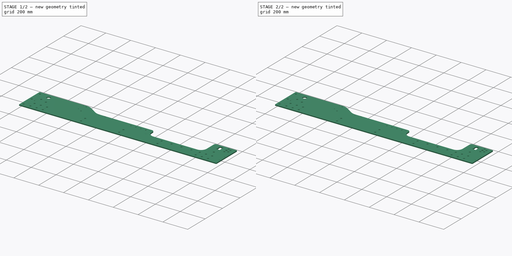
[diagram: build sequence overview — one tinted view per stage of 2, left to right]
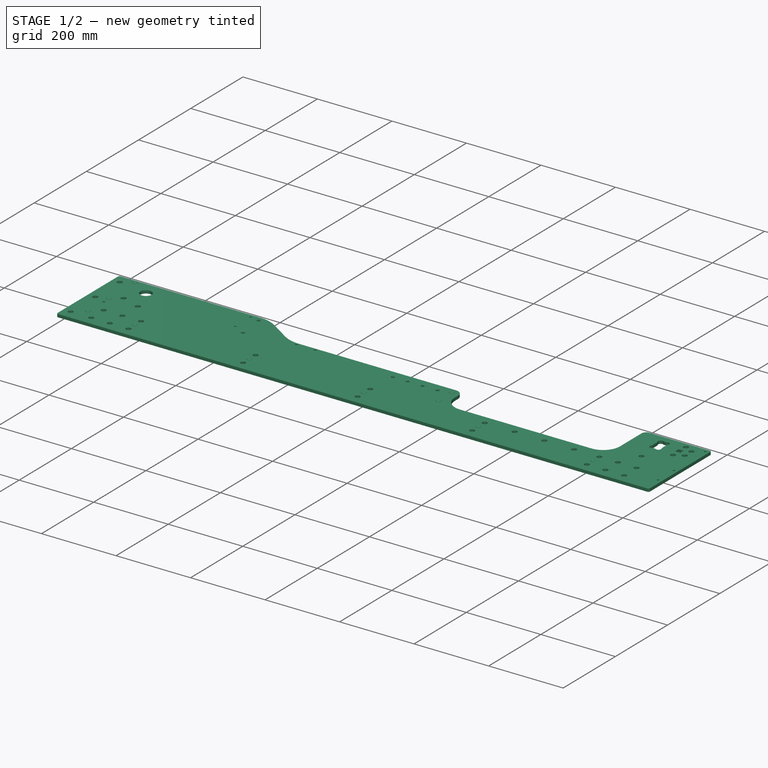
[diagram: stage 1 of 2 — iso view after this stage's code; geometry added in this stage tinted green]
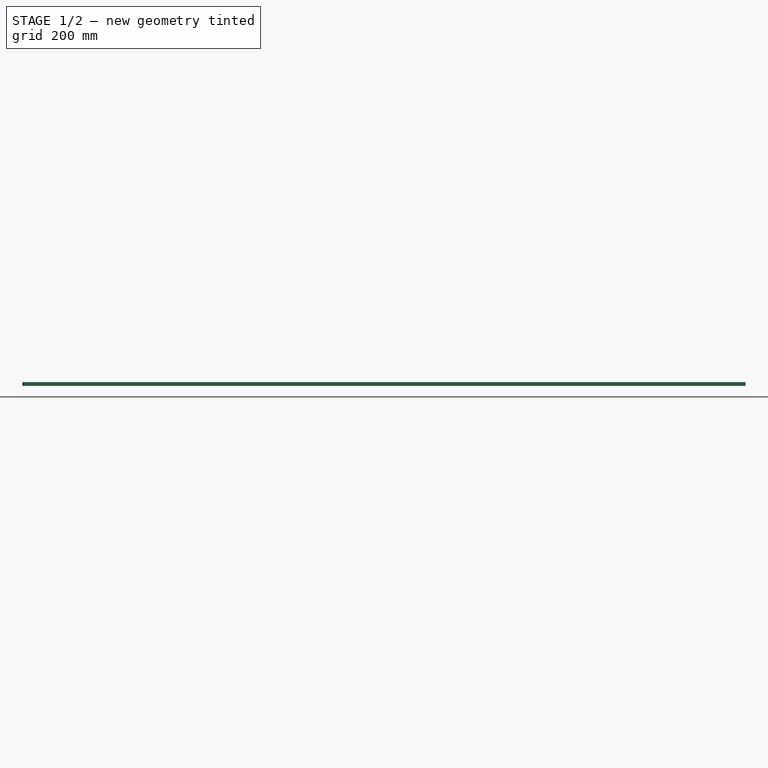
[diagram: stage 1 of 2 — front view after this stage's code; geometry added in this stage tinted green]
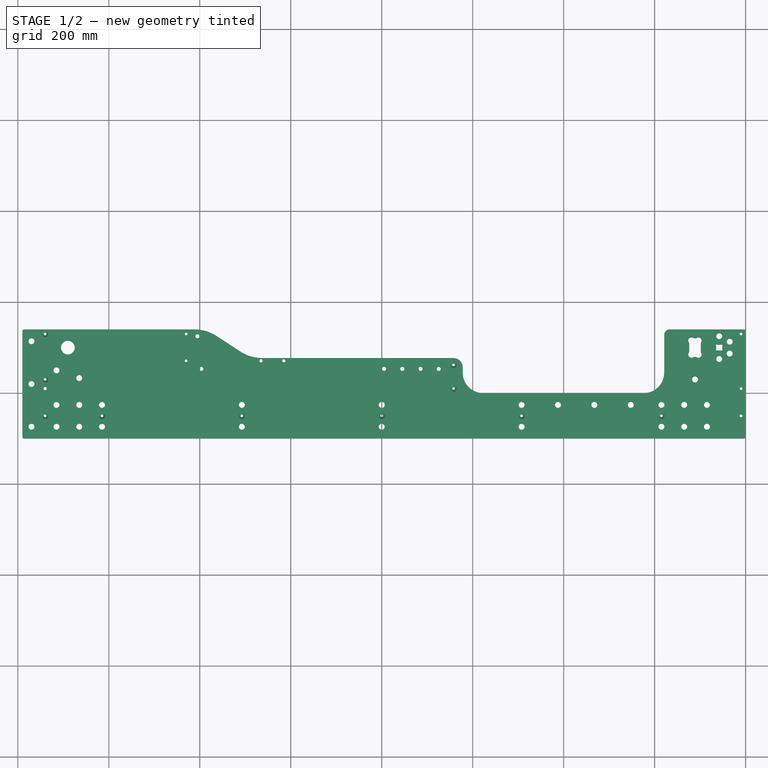
[diagram: stage 1 of 2 — top view after this stage's code; geometry added in this stage tinted green]
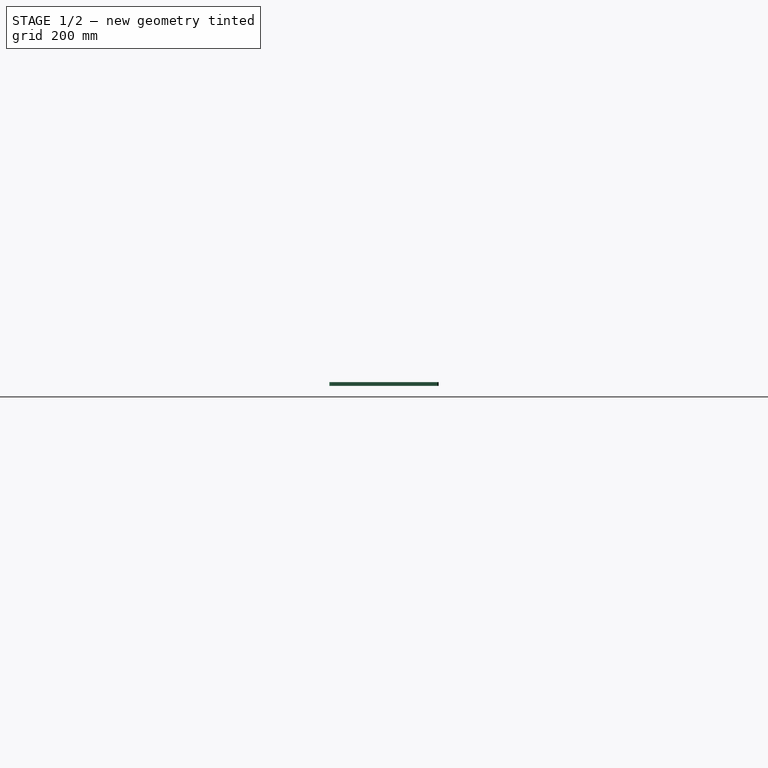
[diagram: stage 1 of 2 — right view after this stage's code; geometry added in this stage tinted green]
FCSTD DOCUMENT  (FreeCAD 0.19R24267 +99 (Git))
Label: V2 Side mounting plate + left plate countersinks
License: All rights reserved
LicenseURL: http://en.wikipedia.org/wiki/All_rights_reserved
objects: PartDesign::Chamfer×2, Sketcher::SketchObject×1, PartDesign::Pad×1, PartDesign::Body×1
note: 8 computed .brp shape members not serialized (recipe doc carries the construction recipe); baked Part::Feature solids carry a one-line shape summary decoded from their .brp

FEATURE [Sketcher::SketchObject] Sketch  label="Profile and holes sketch"
  FullyConstrained = true
  MapMode = 5
  Support = -> [XY_Plane]
  sketch-geometry (196):
    g0: LineSegment StartX=750 StartY=140 StartZ=0 EndX=750 EndY=-100 EndZ=0
    g1: LineSegment StartX=-750 StartY=-100 StartZ=0 EndX=-750 EndY=140 EndZ=0
    g2: ArcOfCircle CenterX=-690 CenterY=100 CenterZ=0 NormalX=0 NormalY=0 NormalZ=1 AngleXU=0 Radius=15 StartAngle=4.71239 EndAngle=7.85398
    g3: LineSegment StartX=223 StartY=0 StartZ=0 EndX=576 EndY=0 EndZ=0
    g4: LineSegment StartX=621 StartY=45 StartZ=0 EndX=621 EndY=128 EndZ=0
    g5: LineSegment StartX=-690 StartY=100 StartZ=0 EndX=60.218 EndY=100 EndZ=0
    g6: LineSegment StartX=60.218 StartY=100 StartZ=0 EndX=60.218 EndY=53.2 EndZ=0
    g7: LineSegment StartX=178 StartY=53.2 StartZ=0 EndX=-750 EndY=53.2 EndZ=0
    g8: LineSegment StartX=-307.5 StartY=-26 StartZ=0 EndX=-307.5 EndY=-74 EndZ=0
    g9: LineSegment StartX=307.5 StartY=-26 StartZ=0 EndX=307.5 EndY=-74 EndZ=0
    g10: LineSegment StartX=715 StartY=-26 StartZ=0 EndX=715 EndY=-74 EndZ=0
    g11: LineSegment StartX=-307.5 StartY=-74 StartZ=0 EndX=5.68e-14 EndY=-74 EndZ=0
    g12: LineSegment StartX=5.68e-14 StartY=-74 StartZ=0 EndX=307.5 EndY=-74 EndZ=0
    g13: GeomPoint X=5.68e-14 Y=-26 Z=0
    g14: Circle CenterX=-715 CenterY=50 CenterZ=0 NormalX=0 NormalY=0 NormalZ=1 AngleXU=0 Radius=6.5
    g15: Circle CenterX=-665 CenterY=33 CenterZ=0 NormalX=0 NormalY=0 NormalZ=1 AngleXU=0 Radius=6.5
    g16: Circle CenterX=-715 CenterY=-26 CenterZ=0 NormalX=0 NormalY=0 NormalZ=1 AngleXU=0 Radius=6.5
    g17: Circle CenterX=-307.5 CenterY=-26 CenterZ=0 NormalX=0 NormalY=0 NormalZ=1 AngleXU=0 Radius=6.5
    g18: Circle CenterX=-307.5 CenterY=-74 CenterZ=0 NormalX=0 NormalY=0 NormalZ=1 AngleXU=0 Radius=6.5
    g19: Circle CenterX=5.68e-14 CenterY=-74 CenterZ=0 NormalX=0 NormalY=0 NormalZ=1 AngleXU=0 Radius=6.5
    g20: Circle CenterX=5.68e-14 CenterY=-26 CenterZ=0 NormalX=0 NormalY=0 NormalZ=1 AngleXU=0 Radius=6.5
    g21: Circle CenterX=307.5 CenterY=-74 CenterZ=0 NormalX=0 NormalY=0 NormalZ=1 AngleXU=0 Radius=6.5
    g22: Circle CenterX=307.5 CenterY=-26 CenterZ=0 NormalX=0 NormalY=0 NormalZ=1 AngleXU=0 Radius=6.5
    g23: Circle CenterX=715 CenterY=-26 CenterZ=0 NormalX=0 NormalY=0 NormalZ=1 AngleXU=0 Radius=6.5
    g24: Circle CenterX=715 CenterY=-74 CenterZ=0 NormalX=0 NormalY=0 NormalZ=1 AngleXU=0 Radius=6.5
    g25: Circle CenterX=307.5 CenterY=-50 CenterZ=0 NormalX=0 NormalY=0 NormalZ=1 AngleXU=0 Radius=3
    g26: Circle CenterX=-307.5 CenterY=-50 CenterZ=0 NormalX=0 NormalY=0 NormalZ=1 AngleXU=0 Radius=3
    g27: LineSegment StartX=-786 StartY=140 StartZ=0 EndX=-412 EndY=140 EndZ=0
    g28: LineSegment StartX=-362.763 StartY=125.338 StartZ=0 EndX=-311.237 EndY=91.6625 EndZ=0
    g29: LineSegment StartX=-262 StartY=77 StartZ=0 EndX=158 EndY=77 EndZ=0
    g30: ArcOfCircle CenterX=-412 CenterY=50 CenterZ=0 NormalX=0 NormalY=0 NormalZ=1 AngleXU=0 Radius=90 StartAngle=0.991931 EndAngle=1.5708
    g31: ArcOfCircle CenterX=-262 CenterY=167 CenterZ=0 NormalX=0 NormalY=0 NormalZ=1 AngleXU=0 Radius=90 StartAngle=4.13352 EndAngle=4.71239
    g32: LineSegment StartX=633 StartY=140 StartZ=0 EndX=796 EndY=140 EndZ=0
    g33: ArcOfCircle CenterX=158 CenterY=57 CenterZ=0 NormalX=0 NormalY=0 NormalZ=1 AngleXU=0 Radius=20 StartAngle=0 EndAngle=1.5708
    g34: LineSegment StartX=-715 StartY=-26 StartZ=0 EndX=-715 EndY=-74 EndZ=0
    g35: Circle CenterX=-715 CenterY=-74 CenterZ=0 NormalX=0 NormalY=0 NormalZ=1 AngleXU=0 Radius=6.5
    g36: LineSegment StartX=688.244 StartY=120.3 StartZ=0 EndX=689.056 EndY=120.3 EndZ=0
    g37: LineSegment StartX=701.3 StartY=108.056 StartZ=0 EndX=701.3 EndY=91.9438 EndZ=0
    g38: LineSegment StartX=689.056 StartY=79.7 StartZ=0 EndX=688.244 EndY=79.7 EndZ=0
    g39: LineSegment StartX=676 StartY=91.9438 StartZ=0 EndX=676 EndY=108.056 EndZ=0
    g40: ArcOfCircle CenterX=680.95 CenterY=115.35 CenterZ=0 NormalX=0 NormalY=0 NormalZ=1 AngleXU=0 Radius=7 StartAngle=1.02277 EndAngle=3.68962
    g41: ArcOfCircle CenterX=680.95 CenterY=84.6497 CenterZ=0 NormalX=0 NormalY=0 NormalZ=1 AngleXU=0 Radius=7 StartAngle=2.59356 EndAngle=5.26042
    g42: ArcOfCircle CenterX=696.35 CenterY=84.6497 CenterZ=0 NormalX=0 NormalY=0 NormalZ=1 AngleXU=0 Radius=7 StartAngle=4.16436 EndAngle=6.83121
    g43: ArcOfCircle CenterX=696.35 CenterY=115.35 CenterZ=0 NormalX=0 NormalY=0 NormalZ=1 AngleXU=0 Radius=7 StartAngle=5.73516 EndAngle=8.40201
    g44: LineSegment StartX=676 StartY=108.056 StartZ=0 EndX=676 EndY=120.3 EndZ=0
    g45: LineSegment StartX=688.244 StartY=120.3 StartZ=0 EndX=676 EndY=120.3 EndZ=0
    g46: LineSegment StartX=689.056 StartY=120.3 StartZ=0 EndX=701.3 EndY=120.3 EndZ=0
    g47: LineSegment StartX=701.3 StartY=108.056 StartZ=0 EndX=701.3 EndY=120.3 EndZ=0
    g48: LineSegment StartX=688.244 StartY=79.7 StartZ=0 EndX=676 EndY=79.7 EndZ=0
    g49: LineSegment StartX=676 StartY=91.9438 StartZ=0 EndX=676 EndY=79.7 EndZ=0
    g50: LineSegment StartX=689.056 StartY=79.7 StartZ=0 EndX=701.3 EndY=79.7 EndZ=0
    g51: LineSegment StartX=701.3 StartY=91.9438 StartZ=0 EndX=701.3 EndY=79.7 EndZ=0
    g52: ArcOfCircle CenterX=669 CenterY=108.056 CenterZ=0 NormalX=0 NormalY=0 NormalZ=1 AngleXU=0 Radius=7 StartAngle=0 EndAngle=0.548028
    g53: ArcOfCircle CenterX=688.244 CenterY=127.3 CenterZ=0 NormalX=0 NormalY=0 NormalZ=1 AngleXU=0 Radius=7 StartAngle=4.16436 EndAngle=4.71239
    g54: ArcOfCircle CenterX=689.056 CenterY=127.3 CenterZ=0 NormalX=0 NormalY=0 NormalZ=1 AngleXU=0 Radius=7 StartAngle=4.71239 EndAngle=5.26042
    g55: ArcOfCircle CenterX=708.3 CenterY=108.056 CenterZ=0 NormalX=0 NormalY=0 NormalZ=1 AngleXU=0 Radius=7 StartAngle=2.59356 EndAngle=3.14159
    g56: ArcOfCircle CenterX=708.3 CenterY=91.9438 CenterZ=0 NormalX=0 NormalY=0 NormalZ=1 AngleXU=0 Radius=7 StartAngle=3.14159 EndAngle=3.68962
    g57: ArcOfCircle CenterX=689.056 CenterY=72.7 CenterZ=0 NormalX=0 NormalY=0 NormalZ=1 AngleXU=0 Radius=7 StartAngle=1.02277 EndAngle=1.5708
    g58: ArcOfCircle CenterX=688.244 CenterY=72.7 CenterZ=0 NormalX=0 NormalY=0 NormalZ=1 AngleXU=0 Radius=7 StartAngle=1.5708 EndAngle=2.11882
    g59: ArcOfCircle CenterX=669 CenterY=91.9438 CenterZ=0 NormalX=0 NormalY=0 NormalZ=1 AngleXU=0 Radius=7 StartAngle=5.73516 EndAngle=6.28319
    g60: LineSegment StartX=60.218 StartY=100 StartZ=0 EndX=800 EndY=100 EndZ=0
    g61: LineSegment StartX=800 StartY=-96 StartZ=0 EndX=800 EndY=136 EndZ=0
    g62: ArcOfCircle CenterX=796 CenterY=-96 CenterZ=0 NormalX=0 NormalY=0 NormalZ=1 AngleXU=0 Radius=4 StartAngle=4.71239 EndAngle=6.28319
    g63: LineSegment StartX=-430 StartY=71 StartZ=0 EndX=-430 EndY=130 EndZ=0
    g64: Circle CenterX=-430 CenterY=130 CenterZ=0 NormalX=0 NormalY=0 NormalZ=1 AngleXU=0 Radius=3
    g65: Circle CenterX=-430 CenterY=71 CenterZ=0 NormalX=0 NormalY=0 NormalZ=1 AngleXU=0 Radius=3
    g66: LineSegment StartX=665 StartY=-74 StartZ=0 EndX=665 EndY=-26 EndZ=0
    g67: LineSegment StartX=615 StartY=-74 StartZ=0 EndX=615 EndY=-26 EndZ=0
    g68: Circle CenterX=615 CenterY=-26 CenterZ=0 NormalX=0 NormalY=0 NormalZ=1 AngleXU=0 Radius=6.5
    g69: Circle CenterX=665 CenterY=-26 CenterZ=0 NormalX=0 NormalY=0 NormalZ=1 AngleXU=0 Radius=6.5
    g70: Circle CenterX=615 CenterY=-74 CenterZ=0 NormalX=0 NormalY=0 NormalZ=1 AngleXU=0 Radius=6.5
    g71: Circle CenterX=665 CenterY=-74 CenterZ=0 NormalX=0 NormalY=0 NormalZ=1 AngleXU=0 Radius=6.5
    g72: ArcOfCircle CenterX=796 CenterY=136 CenterZ=0 NormalX=0 NormalY=0 NormalZ=1 AngleXU=0 Radius=4 StartAngle=0 EndAngle=1.5708
    g73: LineSegment StartX=5.68e-14 StartY=-26 StartZ=0 EndX=5.68e-14 EndY=-74 EndZ=0
    g74: Circle CenterX=5.84e-14 CenterY=-50 CenterZ=0 NormalX=0 NormalY=0 NormalZ=1 AngleXU=0 Radius=3
    g75: LineSegment StartX=576 StartY=0 StartZ=0 EndX=750 EndY=0 EndZ=0
    g76: LineSegment StartX=750 StartY=-50 StartZ=0 EndX=800 EndY=-50 EndZ=0
    g77: Circle CenterX=790 CenterY=-50 CenterZ=0 NormalX=0 NormalY=0 NormalZ=1 AngleXU=0 Radius=3
    g78: ArcOfCircle CenterX=576 CenterY=45 CenterZ=0 NormalX=0 NormalY=0 NormalZ=1 AngleXU=0 Radius=45 StartAngle=4.71239 EndAngle=6.28319
    g79: LineSegment StartX=742 StartY=125 StartZ=0 EndX=742 EndY=75 EndZ=0
    g80: LineSegment StartX=765 StartY=113 StartZ=0 EndX=765 EndY=87 EndZ=0
    g81: Circle CenterX=742 CenterY=125 CenterZ=0 NormalX=0 NormalY=0 NormalZ=1 AngleXU=0 Radius=6.5
    g82: Circle CenterX=765 CenterY=113 CenterZ=0 NormalX=0 NormalY=0 NormalZ=1 AngleXU=0 Radius=6.5
    g83: Circle CenterX=765 CenterY=87 CenterZ=0 NormalX=0 NormalY=0 NormalZ=1 AngleXU=0 Radius=6.5
    g84: Circle CenterX=742 CenterY=75 CenterZ=0 NormalX=0 NormalY=0 NormalZ=1 AngleXU=0 Radius=6.5
    g85: LineSegment StartX=796 StartY=-100 StartZ=0 EndX=-786 EndY=-100 EndZ=0
    g86: LineSegment StartX=-665 StartY=-74 StartZ=0 EndX=-665 EndY=-26 EndZ=0
    g87: LineSegment StartX=-615 StartY=-74 StartZ=0 EndX=-615 EndY=-26 EndZ=0
    g88: Circle CenterX=-665 CenterY=-74 CenterZ=0 NormalX=0 NormalY=0 NormalZ=1 AngleXU=0 Radius=6.5
    g89: Circle CenterX=-615 CenterY=-74 CenterZ=0 NormalX=0 NormalY=0 NormalZ=1 AngleXU=0 Radius=6.5
    g90: Circle CenterX=-665 CenterY=-26 CenterZ=0 NormalX=0 NormalY=0 NormalZ=1 AngleXU=0 Radius=6.5
    g91: Circle CenterX=-615 CenterY=-26 CenterZ=0 NormalX=0 NormalY=0 NormalZ=1 AngleXU=0 Radius=6.5
    g92: LineSegment StartX=-715 StartY=-74 StartZ=0 EndX=-665 EndY=-74 EndZ=0
    g93: LineSegment StartX=-665 StartY=-74 StartZ=0 EndX=-615 EndY=-74 EndZ=0
    g94: LineSegment StartX=-615 StartY=-74 StartZ=0 EndX=-307.5 EndY=-74 EndZ=0
    g95: LineSegment StartX=307.5 StartY=-74 StartZ=0 EndX=615 EndY=-74 EndZ=0
    g96: LineSegment StartX=615 StartY=-74 StartZ=0 EndX=665 EndY=-74 EndZ=0
    g97: LineSegment StartX=665 StartY=-74 StartZ=0 EndX=715 EndY=-74 EndZ=0
    g98: Circle CenterX=-396.782 CenterY=53.2 CenterZ=0 NormalX=0 NormalY=0 NormalZ=1 AngleXU=0 Radius=4.5
    g99: Circle CenterX=5.218 CenterY=53.2 CenterZ=0 NormalX=0 NormalY=0 NormalZ=1 AngleXU=0 Radius=4.5
    g100: Circle CenterX=45.218 CenterY=53.2 CenterZ=0 NormalX=0 NormalY=0 NormalZ=1 AngleXU=0 Radius=4.5
    g101: Circle CenterX=85.218 CenterY=53.2 CenterZ=0 NormalX=0 NormalY=0 NormalZ=1 AngleXU=0 Radius=4.5
    g102: Circle CenterX=125.218 CenterY=53.2 CenterZ=0 NormalX=0 NormalY=0 NormalZ=1 AngleXU=0 Radius=4.5
    g103: LineSegment StartX=-715 StartY=-50 StartZ=0 EndX=-665 EndY=-50 EndZ=0
    g104: LineSegment StartX=-665 StartY=-50 StartZ=0 EndX=-615 EndY=-50 EndZ=0
    g105: LineSegment StartX=-615 StartY=-50 StartZ=0 EndX=-307.5 EndY=-50 EndZ=0
    g106: LineSegment StartX=-307.5 StartY=-50 StartZ=0 EndX=5.68e-14 EndY=-50 EndZ=0
    g107: LineSegment StartX=5.84e-14 StartY=-50 StartZ=0 EndX=307.5 EndY=-50 EndZ=0
    g108: LineSegment StartX=307.5 StartY=-50 StartZ=0 EndX=615 EndY=-50 EndZ=0
    g109: LineSegment StartX=615 StartY=-50 StartZ=0 EndX=665 EndY=-50 EndZ=0
    g110: LineSegment StartX=665 StartY=-50 StartZ=0 EndX=715 EndY=-50 EndZ=0
    g111: LineSegment StartX=738.898 StartY=106.2 StartZ=0 EndX=745.102 EndY=106.2 EndZ=0
    g112: LineSegment StartX=748.6 StartY=102.702 StartZ=0 EndX=748.6 EndY=97.2982 EndZ=0
    g113: LineSegment StartX=745.102 StartY=93.8 StartZ=0 EndX=738.898 EndY=93.8 EndZ=0
    g114: LineSegment StartX=735.4 StartY=97.2982 StartZ=0 EndX=735.4 EndY=102.702 EndZ=0
    g115: ArcOfCircle CenterX=736.814 CenterY=104.786 CenterZ=0 NormalX=0 NormalY=0 NormalZ=1 AngleXU=0 Radius=2 StartAngle=1.02277 EndAngle=3.68962
    g116: ArcOfCircle CenterX=747.186 CenterY=95.2142 CenterZ=0 NormalX=0 NormalY=0 NormalZ=1 AngleXU=0 Radius=2 StartAngle=4.16436 EndAngle=6.83121
    g117: LineSegment StartX=735.4 StartY=97.2982 StartZ=0 EndX=735.4 EndY=93.8 EndZ=0
    g118: LineSegment StartX=745.102 StartY=93.8 StartZ=0 EndX=748.6 EndY=93.8 EndZ=0
    g119: LineSegment StartX=748.6 StartY=102.702 StartZ=0 EndX=748.6 EndY=106.2 EndZ=0
    g120: LineSegment StartX=738.898 StartY=106.2 StartZ=0 EndX=735.4 EndY=106.2 EndZ=0
    g121: LineSegment StartX=735.4 StartY=102.702 StartZ=0 EndX=735.4 EndY=106.2 EndZ=0
    g122: LineSegment StartX=738.898 StartY=93.8 StartZ=0 EndX=735.4 EndY=93.8 EndZ=0
    g123: LineSegment StartX=748.6 StartY=97.2982 StartZ=0 EndX=748.6 EndY=93.8 EndZ=0
    g124: LineSegment StartX=745.102 StartY=106.2 StartZ=0 EndX=748.6 EndY=106.2 EndZ=0
    g125: ArcOfCircle CenterX=733.4 CenterY=102.702 CenterZ=0 NormalX=0 NormalY=0 NormalZ=1 AngleXU=0 Radius=2 StartAngle=1e-15 EndAngle=0.548028
    g126: ArcOfCircle CenterX=738.898 CenterY=108.2 CenterZ=0 NormalX=0 NormalY=0 NormalZ=1 AngleXU=0 Radius=2 StartAngle=4.16436 EndAngle=4.71239
    g127: ArcOfCircle CenterX=745.102 CenterY=91.8 CenterZ=0 NormalX=0 NormalY=0 NormalZ=1 AngleXU=0 Radius=2 StartAngle=1.02277 EndAngle=1.5708
    g128: ArcOfCircle CenterX=750.6 CenterY=97.2982 CenterZ=0 NormalX=0 NormalY=0 NormalZ=1 AngleXU=0 Radius=2 StartAngle=3.14159 EndAngle=3.68962
    g129: ArcOfCircle CenterX=747.186 CenterY=104.786 CenterZ=0 NormalX=0 NormalY=0 NormalZ=1 AngleXU=0 Radius=2 StartAngle=5.73516 EndAngle=8.40201
    g130: ArcOfCircle CenterX=745.102 CenterY=108.2 CenterZ=0 NormalX=0 NormalY=0 NormalZ=1 AngleXU=0 Radius=2 StartAngle=4.71239 EndAngle=5.26042
    g131: ArcOfCircle CenterX=750.6 CenterY=102.702 CenterZ=0 NormalX=0 NormalY=0 NormalZ=1 AngleXU=0 Radius=2 StartAngle=2.59356 EndAngle=3.14159
    g132: ArcOfCircle CenterX=736.814 CenterY=95.2142 CenterZ=0 NormalX=0 NormalY=0 NormalZ=1 AngleXU=0 Radius=2 StartAngle=2.59356 EndAngle=5.26042
    g133: ArcOfCircle CenterX=733.4 CenterY=97.2982 CenterZ=0 NormalX=0 NormalY=0 NormalZ=1 AngleXU=0 Radius=2 StartAngle=5.73516 EndAngle=6.28319
    g134: ArcOfCircle CenterX=738.898 CenterY=91.8 CenterZ=0 NormalX=0 NormalY=0 NormalZ=1 AngleXU=0 Radius=2 StartAngle=1.5708 EndAngle=2.11882
    g135: GeomPoint X=742 Y=100 Z=0
    g136: LineSegment StartX=-715 StartY=-50 StartZ=0 EndX=-750 EndY=-50 EndZ=0
    g137: LineSegment StartX=715 StartY=-50 StartZ=0 EndX=750 EndY=-50 EndZ=0
    g138: LineSegment StartX=780 StartY=-50 StartZ=0 EndX=780 EndY=140 EndZ=0
    g139: LineSegment StartX=-412 StartY=140 StartZ=0 EndX=633 EndY=140 EndZ=0
    g140: Circle CenterX=60.218 CenterY=100 CenterZ=0 NormalX=0 NormalY=0 NormalZ=1 AngleXU=0 Radius=15
    g141: GeomPoint X=790 Y=10 Z=0
    g142: GeomPoint X=790 Y=130 Z=0
    g143: LineSegment StartX=780 StartY=-40 StartZ=0 EndX=800 EndY=-40 EndZ=0
    g144: Circle CenterX=790 CenterY=10 CenterZ=0 NormalX=0 NormalY=0 NormalZ=1 AngleXU=0 Radius=3
    g145: Circle CenterX=790 CenterY=130 CenterZ=0 NormalX=0 NormalY=0 NormalZ=1 AngleXU=0 Radius=3
    g146: LineSegment StartX=790 StartY=10 StartZ=0 EndX=790 EndY=-40 EndZ=0
    g147: LineSegment StartX=790 StartY=10 StartZ=0 EndX=790 EndY=130 EndZ=0
    g148: LineSegment StartX=790 StartY=130 StartZ=0 EndX=790 EndY=140 EndZ=0
    g149: LineSegment StartX=-730 StartY=140 StartZ=0 EndX=-730 EndY=-40 EndZ=0
    g150: LineSegment StartX=-730 StartY=-40 StartZ=0 EndX=-750 EndY=-40 EndZ=0
    g151: Circle CenterX=-740 CenterY=-50 CenterZ=0 NormalX=0 NormalY=0 NormalZ=1 AngleXU=0 Radius=3
    g152: LineSegment StartX=-740 StartY=-40 StartZ=0 EndX=-740 EndY=10 EndZ=0
    g153: LineSegment StartX=-740 StartY=10 StartZ=0 EndX=-740 EndY=130 EndZ=0
    g154: LineSegment StartX=-740 StartY=130 StartZ=0 EndX=-740 EndY=140 EndZ=0
    g155: Circle CenterX=-740 CenterY=10 CenterZ=0 NormalX=0 NormalY=0 NormalZ=1 AngleXU=0 Radius=3.5
    g156: Circle CenterX=-740 CenterY=130 CenterZ=0 NormalX=0 NormalY=0 NormalZ=1 AngleXU=0 Radius=3
    g157: Circle CenterX=387.5 CenterY=-26 CenterZ=0 NormalX=0 NormalY=0 NormalZ=1 AngleXU=0 Radius=6.5
    g158: Circle CenterX=467.5 CenterY=-26 CenterZ=0 NormalX=0 NormalY=0 NormalZ=1 AngleXU=0 Radius=6.5
    g159: Circle CenterX=547.5 CenterY=-26 CenterZ=0 NormalX=0 NormalY=0 NormalZ=1 AngleXU=0 Radius=6.5
    g160: LineSegment StartX=387.5 StartY=-26 StartZ=0 EndX=387.5 EndY=-74 EndZ=0
    g161: LineSegment StartX=467.5 StartY=-26 StartZ=0 EndX=467.5 EndY=-74 EndZ=0
    g162: LineSegment StartX=547.5 StartY=-26 StartZ=0 EndX=547.5 EndY=-74 EndZ=0
    g163: Circle CenterX=158 CenterY=62 CenterZ=0 NormalX=0 NormalY=0 NormalZ=1 AngleXU=0 Radius=3
    g164: LineSegment StartX=158 StartY=62 StartZ=0 EndX=158 EndY=10 EndZ=0
    g165: Circle CenterX=158 CenterY=10 CenterZ=0 NormalX=0 NormalY=0 NormalZ=1 AngleXU=0 Radius=3
    g166: LineSegment StartX=-790 StartY=136 StartZ=0 EndX=-790 EndY=-96 EndZ=0
    g167: ArcOfCircle CenterX=-786 CenterY=136 CenterZ=0 NormalX=0 NormalY=0 NormalZ=1 AngleXU=0 Radius=4 StartAngle=1.5708 EndAngle=3.14159
    g168: ArcOfCircle CenterX=-786 CenterY=-96 CenterZ=0 NormalX=0 NormalY=0 NormalZ=1 AngleXU=0 Radius=4 StartAngle=3.14159 EndAngle=4.71239
    g169: Circle CenterX=-770 CenterY=-74 CenterZ=0 NormalX=0 NormalY=0 NormalZ=1 AngleXU=0 Radius=6.5
    g170: Circle CenterX=-770 CenterY=114 CenterZ=0 NormalX=0 NormalY=0 NormalZ=1 AngleXU=0 Radius=6.5
    g171: ArcOfCircle CenterX=633 CenterY=128 CenterZ=0 NormalX=0 NormalY=0 NormalZ=1 AngleXU=0 Radius=12 StartAngle=1.5708 EndAngle=3.14159
    g172: Circle CenterX=-740 CenterY=30 CenterZ=0 NormalX=0 NormalY=0 NormalZ=1 AngleXU=0 Radius=3
    g173: Circle CenterX=-770 CenterY=20 CenterZ=0 NormalX=0 NormalY=0 NormalZ=1 AngleXU=0 Radius=6.5
    g174: LineSegment StartX=-770 StartY=-74 StartZ=0 EndX=-770 EndY=-100 EndZ=0
    g175: LineSegment StartX=-770 StartY=-74 StartZ=0 EndX=-770 EndY=20 EndZ=0
    g176: LineSegment StartX=-770 StartY=20 StartZ=0 EndX=-770 EndY=114 EndZ=0
    g177: LineSegment StartX=-770 StartY=114 StartZ=0 EndX=-770 EndY=140 EndZ=0
    g178: LineSegment StartX=-715 StartY=-74 StartZ=0 EndX=-770 EndY=-74 EndZ=0
    g179: Circle CenterX=-405 CenterY=125 CenterZ=0 NormalX=0 NormalY=0 NormalZ=1 AngleXU=0 Radius=4.5
    g180: Circle CenterX=688.8 CenterY=30 CenterZ=0 NormalX=0 NormalY=0 NormalZ=1 AngleXU=0 Radius=6.5
    g181: LineSegment StartX=178 StartY=57 StartZ=0 EndX=178 EndY=45 EndZ=0
    g182: ArcOfCircle CenterX=223 CenterY=45 CenterZ=0 NormalX=0 NormalY=0 NormalZ=1 AngleXU=0 Radius=45 StartAngle=3.14159 EndAngle=4.71239
    g183: GeomPoint X=320 Y=-50 Z=0
    g184: LineSegment StartX=-690 StartY=100 StartZ=0 EndX=-690 EndY=115 EndZ=0
    g185: LineSegment StartX=-690 StartY=100 StartZ=0 EndX=-690 EndY=85 EndZ=0
    g186: ArcOfCircle CenterX=-690 CenterY=100 CenterZ=0 NormalX=0 NormalY=0 NormalZ=1 AngleXU=0 Radius=15 StartAngle=1.5708 EndAngle=4.71239
    g187: LineSegment StartX=-215.282 StartY=71 StartZ=0 EndX=-265.282 EndY=71 EndZ=0
    g188: Circle CenterX=-265.282 CenterY=71 CenterZ=0 NormalX=0 NormalY=0 NormalZ=1 AngleXU=0 Radius=3.5
    g189: Circle CenterX=-215.282 CenterY=71 CenterZ=0 NormalX=0 NormalY=0 NormalZ=1 AngleXU=0 Radius=3.5
    g190: GeomPoint X=-240.282 Y=71 Z=0
    g191: Circle CenterX=615 CenterY=-50 CenterZ=0 NormalX=0 NormalY=0 NormalZ=1 AngleXU=0 Radius=3
    g192: Circle CenterX=-615 CenterY=-50 CenterZ=0 NormalX=0 NormalY=0 NormalZ=1 AngleXU=0 Radius=3
    g193: Circle CenterX=-690 CenterY=100 CenterZ=0 NormalX=0 NormalY=0 NormalZ=1 AngleXU=0 Radius=6.5
    g194: LineSegment StartX=-265.282 StartY=71 StartZ=0 EndX=-430 EndY=71 EndZ=0
    g195: Circle CenterX=60.218 CenterY=100 CenterZ=0 NormalX=0 NormalY=0 NormalZ=1 AngleXU=0 Radius=22.5
  constraints (525):
    c: Vertical(g0)
    c: Vertical(g1)
    c: DistanceY(g-1,g2) = 100
    c: DistanceX(g1,g2) = 60
    c: Horizontal(g3)
    c: PointOnObject(g-1,g3)
    c: Coincident(g5,g2)
    c: Horizontal(g5)
    c: DistanceX(g5,g5) = 750.218
    c: Vertical(g6)
    c: DistanceY(g-1,g6) = 53.2
    c: Horizontal(g7)
    c: PointOnObject(g7,g1)
    c: PointOnObject(g6,g7)
    c: DistanceX(g1,g0) = 1500
    c: Coincident(g11,g8)
    c: Horizontal(g11)
    c: Coincident(g12,g9)
    c: Horizontal(g12)
    c: DistanceX(g14,g2) = 25
    c: DistanceX(g2,g15) = 25
    c: Equal(g14,g15)
    c: DistanceY(g15,g14) = 17
    c: DistanceY(g-1,g15) = 33
    c: Coincident(g17,g8)
    c: Coincident(g18,g8)
    c: Coincident(g20,g13)
    c: Coincident(g21,g9)
    c: Coincident(g22,g9)
    c: Coincident(g23,g10)
    c: Coincident(g24,g10)
    c: Equal(g24,g23)
    c: Equal(g21,g22)
    c: Equal(g22,g19)
    c: Equal(g19,g20)
    c: Equal(g18,g17)
    c: Coincident(g5,g6)
    c: Horizontal(g27)
    c: Horizontal(g29)
    c: Tangent(g28,g30) = 1.5708
    c: Tangent(g27,g30) = 1.5708
    c: Tangent(g28,g31) = -1.5708
    c: Tangent(g29,g31) = -1.5708
    c: DistanceY(g-1,g29) = 77
    c: DistanceX(g27,g29) = 150
    c: Equal(g30,g31)
    c: Radius(g30) = 90
    c: Horizontal(g32)
    c: Tangent(g33,g29) = 1.5708
    c: Coincident(g34,g16)
    c: Equal(g35,g16)
    c: Equal(g17,g16)
    c: Horizontal(g36)
    c: Horizontal(g38)
    c: Vertical(g37)
    c: Vertical(g39)
    c: PointOnObject(g44,g40)
    c: Coincident(g45,g44)
    c: PointOnObject(g46,g43)
    c: Coincident(g47,g46)
    c: PointOnObject(g48,g41)
    c: Coincident(g49,g48)
    c: PointOnObject(g50,g42)
    c: Coincident(g51,g50)
    c: Equal(g41,g40)
    c: Equal(g40,g43)
    c: Equal(g43,g42)
    c: Equal(g49,g48)
    c: Equal(g48,g50)
    c: Equal(g50,g51)
    c: Equal(g51,g47)
    c: Equal(g47,g46)
    c: Equal(g46,g45)
    c: Equal(g45,g44)
    c: Vertical(g44)
    c: Vertical(g49)
    c: Vertical(g51)
    c: Vertical(g47)
    c: Horizontal(g45)
    c: Tangent(g40,g52) = 1.5708
    c: Tangent(g39,g52) = -1.5708
    c: Tangent(g40,g53) = 1.5708
    c: Tangent(g36,g53) = -1.5708
    c: Tangent(g43,g54) = 1.5708
    c: Tangent(g36,g54) = -1.5708
    c: Tangent(g43,g55) = 1.5708
    c: Tangent(g37,g55) = -1.5708
    c: Tangent(g42,g56) = 1.5708
    c: Tangent(g37,g56) = -1.5708
    c: Tangent(g38,g57) = -1.5708
    c: Tangent(g42,g57) = 1.5708
    c: Tangent(g41,g58) = 1.5708
    c: Tangent(g38,g58) = -1.5708
    c: Tangent(g41,g59) = 1.5708
    c: Tangent(g39,g59) = -1.5708
    c: Coincident(g39,g49)
    c: Coincident(g38,g48)
    c: Coincident(g39,g44)
    c: Coincident(g36,g45)
    c: Coincident(g36,g46)
    c: Coincident(g37,g47)
    c: Coincident(g38,g50)
    c: Coincident(g37,g51)
    c: Horizontal(g48)
    c: Horizontal(g50)
    c: DistanceY(g50,g46) = 40.6
    c: Equal(g40,g53)
    c: Equal(g53,g52)
    c: Equal(g52,g59)
    c: Equal(g40,g54)
    c: Equal(g54,g55)
    c: Equal(g55,g56)
    c: Radius(g40) = 7
    c: Coincident(g60,g5)
    c: Symmetric(g44,g48,g60)
    c: DistanceX(g29,g29) = 420
    c: Vertical(g61)
    c: Tangent(g61,g62) = -1.5708
    c: DistanceX(g0,g61) = 50
    c: Vertical(g63)
    c: Coincident(g64,g63)
    c: Equal(g65,g64)
    c: DistanceY(g35,g16) = 48
    c: Coincident(g68,g67)
    c: Coincident(g69,g66)
    c: Coincident(g70,g67)
    c: Coincident(g71,g66)
    c: Equal(g71,g70)
    c: Equal(g70,g68)
    c: Equal(g68,g69)
    c: Equal(g69,g16)
    c: PointOnObject(g0,g32)
    c: Tangent(g61,g72) = -1.5708
    c: Tangent(g32,g72) = 1.5708
    c: Coincident(g73,g20)
    c: Coincident(g73,g19)
    c: Vertical(g73)
    c: Vertical(g34)
    c: PointOnObject(g76,g0)
    c: PointOnObject(g75,g0)
    c: Horizontal(g75)
    c: DistanceY(g0,g75) = 100
    c: PointOnObject(g76,g61)
    c: PointOnObject(g77,g76)
    c: DistanceX(g77,g76) = 10
    c: Vertical(g4)
    c: Tangent(g4,g78) = -1.5708
    c: Tangent(g3,g78) = -1.5708
    c: Coincident(g75,g3)
    c: Radius(g78) = 45
    c: PointOnObject(g60,g61)
    c: Symmetric(g79,g79,g60)
    c: Symmetric(g80,g80,g60)
    c: Coincident(g81,g79)
    c: Coincident(g82,g80)
    c: Coincident(g83,g80)
    c: Coincident(g84,g79)
    c: Equal(g84,g81)
    c: Equal(g81,g82)
    c: Equal(g82,g83)
    c: DistanceY(g80,g80) = 26
    c: Distance(g80,g79) = 25.9422
    c: DistanceY(g79,g79) = 50
    c: Coincident(g65,g63)
    c: Horizontal(g85)
    c: PointOnObject(g0,g85)
    c: Tangent(g85,g62) = 1.5708
    c: Equal(g72,g62)
    c: DistanceY(g60,g32) = 40
    c: Coincident(g88,g86)
    c: Coincident(g89,g87)
    c: Coincident(g90,g86)
    c: Coincident(g91,g87)
    c: Equal(g16,g90)
    c: Equal(g90,g88)
    c: Equal(g88,g89)
    c: Equal(g89,g91)
    c: Coincident(g19,g11)
    c: Coincident(g19,g12)
    c: Coincident(g34,g35)
    c: Coincident(g92,g35)
    c: Coincident(g92,g88)
    c: Horizontal(g92)
    c: Coincident(g93,g88)
    c: Coincident(g93,g89)
    c: Horizontal(g93)
    c: Coincident(g94,g89)
    c: Coincident(g94,g18)
    c: Horizontal(g94)
    c: Coincident(g95,g21)
    c: Coincident(g95,g70)
    c: Horizontal(g95)
    c: Coincident(g96,g70)
    c: Coincident(g96,g71)
    c: Horizontal(g96)
    c: Coincident(g97,g71)
    c: Coincident(g97,g24)
    c: Horizontal(g97)
    c: Equal(g94,g11)
    c: Equal(g11,g12)
    c: Equal(g12,g95)
    c: Equal(g23,g16)
    c: Equal(g20,g16)
    c: PointOnObject(g98,g7)
    c: PointOnObject(g99,g7)
    c: PointOnObject(g100,g7)
    c: PointOnObject(g101,g7)
    c: PointOnObject(g102,g7)
    c: Equal(g98,g99)
    c: Equal(g99,g100)
    c: Equal(g100,g101)
    c: Equal(g101,g102)
    c: DistanceX(g99,g100) = 40
    c: DistanceX(g100,g101) = 40
    c: DistanceX(g101,g102) = 40
    c: DistanceX(g98,g6) = 457
    c: DistanceX(g6,g102) = 65
    c: Horizontal(g103)
    c: Coincident(g104,g103)
    c: Horizontal(g104)
    c: Coincident(g105,g104)
    c: Coincident(g105,g26)
    c: Horizontal(g105)
    c: Coincident(g106,g26)
    c: Coincident(g106,g74)
    c: Horizontal(g106)
    c: Coincident(g107,g74)
    c: Coincident(g107,g25)
    c: Horizontal(g107)
    c: Coincident(g108,g25)
    c: Horizontal(g108)
    c: Coincident(g109,g108)
    c: Horizontal(g109)
    c: Coincident(g110,g109)
    c: Horizontal(g110)
    c: Symmetric(g71,g69,g109)
    c: Symmetric(g70,g68,g108)
    c: Symmetric(g21,g22,g25)
    c: Symmetric(g19,g20,g74)
    c: Symmetric(g18,g17,g26)
    c: Symmetric(g89,g91,g104)
    c: Symmetric(g88,g90,g103)
    c: Vertical(g9)
    c: Vertical(g67)
    c: Vertical(g66)
    c: Vertical(g10)
    c: Vertical(g8)
    c: Vertical(g86)
    c: Vertical(g87)
    c: Equal(g103,g104)
    c: Equal(g110,g109)
    c: Horizontal(g111)
    c: Horizontal(g113)
    c: Vertical(g112)
    c: Vertical(g114)
    c: Vertical(g117)
    c: PointOnObject(g118,g116)
    c: Horizontal(g118)
    c: Vertical(g119)
    c: PointOnObject(g120,g115)
    c: Horizontal(g120)
    c: Coincident(g121,g120)
    c: Vertical(g121)
    c: Coincident(g122,g117)
    c: Horizontal(g122)
    c: Coincident(g123,g118)
    c: Vertical(g123)
    c: Coincident(g124,g119)
    c: Horizontal(g124)
    c: Equal(g121,g120)
    c: Equal(g124,g119)
    c: Equal(g123,g118)
    c: Equal(g121,g117)
    c: Tangent(g115,g125) = 1.5708
    c: Tangent(g114,g125) = -1.5708
    c: Tangent(g115,g126) = 1.5708
    c: Tangent(g111,g126) = -1.5708
    c: Tangent(g113,g127) = -1.5708
    c: Tangent(g116,g127) = 1.5708
    c: Tangent(g116,g128) = 1.5708
    c: Tangent(g112,g128) = -1.5708
    c: Equal(g128,g116)
    c: Equal(g116,g127)
    c: Coincident(g113,g118)
    c: Coincident(g112,g123)
    c: Coincident(g114,g121)
    c: Coincident(g111,g120)
    c: Equal(g126,g115)
    c: Equal(g125,g115)
    c: Equal(g122,g117)
    c: PointOnObject(g119,g129)
    c: Tangent(g129,g130) = 1.5708
    c: Tangent(g111,g130) = -1.5708
    c: Tangent(g129,g131) = 1.5708
    c: Tangent(g112,g131) = -1.5708
    c: Coincident(g111,g124)
    c: Coincident(g119,g112)
    c: Equal(g130,g129)
    c: Equal(g129,g131)
    c: PointOnObject(g117,g132)
    c: Tangent(g114,g133) = -1.5708
    c: Tangent(g132,g133) = 1.5708
    c: Coincident(g117,g114)
    c: Tangent(g132,g134) = 1.5708
    c: Tangent(g113,g134) = -1.5708
    c: Coincident(g122,g113)
    c: Equal(g133,g132)
    c: Equal(g132,g134)
    c: Equal(g129,g116)
    c: Equal(g132,g129)
    c: DistanceX(g117,g118) = 13.2
    c: Symmetric(g81,g84,g135)
    c: Symmetric(g117,g119,g135)
    c: PointOnObject(g136,g1)
    c: Horizontal(g136)
    c: Coincident(g137,g76)
    c: Equal(g137,g136)
    c: DistanceX(g136,g136) = 35
    c: DistanceX(g103,g103) = 50
    c: DistanceY(g136,g-1) = 50
    c: Symmetric(g136,g137,g-2)
    c: Equal(g109,g103)
    c: DistanceX(g1,g64) = 320
    c: Horizontal(g76)
    c: Distance(g135,g83) = 26.4197
    c: DistanceY(g117,g120) = 12.4
    c: Radius(g115) = 2
    c: DistanceY(g68,g84) = 101
    c: DistanceX(g5,g22) = 247.282
    c: DistanceY(g16,g-1) = 26
    c: Vertical(g138)
    c: Symmetric(g138,g76,g77)
    c: DistanceX(g23,g84) = 27
    c: Coincident(g139,g27)
    c: Horizontal(g139)
    c: Coincident(g140,g5)
    c: Equal(g2,g140)
    c: Symmetric(g24,g23,g110)
    c: Coincident(g110,g137)
    c: PointOnObject(g143,g138)
    c: PointOnObject(g143,g61)
    c: Horizontal(g143)
    c: DistanceY(g76,g143) = 10
    c: Coincident(g144,g141)
    c: Coincident(g145,g142)
    c: Equal(g145,g144)
    c: Equal(g144,g77)
    c: Coincident(g146,g144)
    c: Vertical(g146)
    c: Coincident(g147,g144)
    c: Coincident(g147,g145)
    c: Vertical(g147)
    c: Coincident(g148,g145)
    c: PointOnObject(g148,g32)
    c: Vertical(g148)
    c: Symmetric(g143,g143,g146)
    c: PointOnObject(g149,g27)
    c: Vertical(g149)
    c: Coincident(g150,g149)
    c: PointOnObject(g150,g1)
    c: Horizontal(g150)
    c: DistanceY(g136,g150) = 10
    c: PointOnObject(g151,g136)
    c: Vertical(g152)
    c: Coincident(g153,g152)
    c: Vertical(g153)
    c: Coincident(g154,g153)
    c: PointOnObject(g154,g27)
    c: Vertical(g154)
    c: Coincident(g155,g152)
    c: Coincident(g156,g153)
    c: DistanceX(g136,g151) = 10
    c: Coincident(g103,g136)
    c: Symmetric(g150,g149,g152)
    c: Equal(g156,g26)
    c: Equal(g26,g74)
    c: Equal(g74,g25)
    c: Equal(g25,g77)
    c: Equal(g34,g86)
    c: PointOnObject(g103,g34)
    c: Equal(g65,g151)
    c: Coincident(g160,g157)
    c: PointOnObject(g160,g95)
    c: Vertical(g160)
    c: Coincident(g161,g158)
    c: PointOnObject(g161,g95)
    c: Vertical(g161)
    c: Coincident(g162,g159)
    c: PointOnObject(g162,g95)
    c: Vertical(g162)
    c: Equal(g34,g160)
    c: Equal(g160,g161)
    c: Equal(g161,g162)
    c: Equal(g157,g158)
    c: Equal(g158,g159)
    c: Equal(g159,g16)
    c: Equal(g163,g151)
    c: Coincident(g164,g163)
    c: Vertical(g164)
    c: DistanceY(g-1,g164) = 10
    c: Coincident(g165,g164)
    c: Equal(g163,g165)
    c: DistanceY(g-1,g155) = 10
    c: DistanceY(g-1,g144) = 10
    c: PointOnObject(g1,g85)
    c: PointOnObject(g1,g27)
    c: DistanceX(g1,g27) = 338
    c: Vertical(g166)
    c: Tangent(g27,g167) = 1.5708
    c: Tangent(g166,g167) = -1.5708
    c: Tangent(g166,g168) = -1.5708
    c: Tangent(g85,g168) = 1.5708
    c: DistanceY(g-1,g27) = 140
    c: Equal(g167,g168)
    c: Equal(g169,g170)
    c: Tangent(g32,g171) = 1.5708
    c: Tangent(g4,g171) = 1.5708
    c: Coincident(g139,g32)
    c: Radius(g171) = 12
    c: Radius(g72) = 4
    c: Equal(g167,g72)
    c: PointOnObject(g172,g153)
    c: DistanceY(g155,g172) = 20
    c: Equal(g172,g151)
    c: DistanceY(g154,g154) = 10
    c: Equal(g154,g148)
    c: DistanceY(g64,g27) = 10
    c: DistanceY(g169,g170) = 188
    c: Equal(g173,g170)
    c: Symmetric(g170,g169,g173)
    c: DistanceY(g148,g148) = 10
    c: Coincident(g174,g169)
    c: PointOnObject(g174,g85)
    c: Vertical(g174)
    c: Coincident(g175,g169)
    c: Coincident(g175,g173)
    c: Vertical(g175)
    c: Coincident(g176,g173)
    c: Coincident(g176,g170)
    c: Coincident(g177,g170)
    c: PointOnObject(g177,g27)
    c: Vertical(g177)
    c: Coincident(g178,g35)
    c: Coincident(g178,g169)
    c: Equal(g174,g177)
    c: Horizontal(g178)
    c: DistanceX(g166,g174) = 20
    c: DistanceX(g174,g1) = 20
    c: DistanceX(g1,g149) = 20
    c: DistanceX(g4,g44) = 55
    c: DistanceX(g44,g46) = 25.3
    c: DistanceX(g46,g81) = 40.7
    c: DistanceX(g81,g82) = 23
    c: PointOnObject(g138,g32)
    c: DistanceX(g82,g138) = 15
    c: DistanceX(g1,g163) = 908
    c: DistanceX(g64,g179) = 25
    c: DistanceX(g179,g163) = 563
    c: DistanceX(g110,g76) = 35
    c: DistanceX(g78,g84) = 166
    c: DistanceY(g78,g84) = 30
    c: DistanceX(g180,g37) = 12.5
    c: Equal(g180,g83)
    c: DistanceY(g180,g60) = 70
    c: DistanceX(g21,g160) = 80
    c: DistanceX(g160,g161) = 80
    c: DistanceX(g161,g162) = 80
    c: DistanceY(g179,g27) = 15
    c: DistanceY(g74,g179) = 175
    c: Vertical(g181)
    c: Tangent(g181,g33) = 1.5708
    c: Tangent(g182,g181) = -1.5708
    c: Tangent(g182,g3) = -1.5708
    c: DistanceX(g102,g33) = 52.782
    c: DistanceX(g102,g33) = 32.782
    c: DistanceX(g65,g98) = 33.218
    c: PointOnObject(g183,g108)
    c: DistanceX(g22,g183) = 12.5
    c: DistanceX(g183,g39) = 356
    c: Coincident(g184,g2)
    c: Vertical(g184)
    c: Coincident(g185,g2)
    c: Coincident(g185,g2)
    c: Coincident(g2,g184)
    c: Coincident(g186,g2)
    c: Coincident(g186,g2)
    c: Coincident(g186,g2)
    c: Vertical(g185)
    c: Equal(g172,g156)
    c: Horizontal(g187)
    c: Coincident(g188,g187)
    c: Coincident(g189,g187)
    c: Symmetric(g187,g187,g190)
    c: DistanceX(g190,g5) = 300.5
    c: DistanceX(g187,g187) = 50
    c: DistanceY(g100,g189) = 17.8
    c: Equal(g188,g189)
    c: PointOnObject(g7,g181)
    c: Radius(g182) = 45
    c: Radius(g33) = 20
    c: Diameter(g83) = 13
    c: Coincident(g191,g108)
    c: Coincident(g192,g104)
    c: Equal(g151,g192)
    c: Equal(g192,g191)
    c: DistanceY(g19,g165) = 84
    c: DistanceX(g19,g165) = 158
    c: Diameter(g2) = 30
    c: Coincident(g193,g2)
    c: Diameter(g193) = 13
    c: Coincident(g194,g188)
    c: Coincident(g194,g65)
    c: Horizontal(g194)
    c: Coincident(g195,g5)
    c: Diameter(g195) = 45
    c: DistanceY(g188,g29) = 6
    c: DistanceY(g165,g163) = 52
    c: Diameter(g189) = 7
    c: Diameter(g98) = 9
    c: Diameter(g170) = 13
    c: Diameter(g156) = 6
    c: Diameter(g155) = 7
    c: Diameter(g15) = 13
    c: Diameter(g179) = 9
    c: Equal(g16,g170)
FEATURE [PartDesign::Pad] Pad  label="Plate thickness"
  Direction = (1,1,1)
  Length = 8
  Length2 = 100
  Profile = -> Sketch
  Type = 0
FEATURE [PartDesign::Chamfer] Chamfer  label="M5 Countersinks"
  Angle = 45
  Base = -> Pad [Edge285,Edge327,Edge321,Edge288,Edge300,Edge294,Edge297,Edge291,Edge324,Edge315]
  BaseFeature = -> Pad
  ChamferType = 0
  FlipDirection = false
  Size = 4
  Size2 = 1
  SupportTransform = false
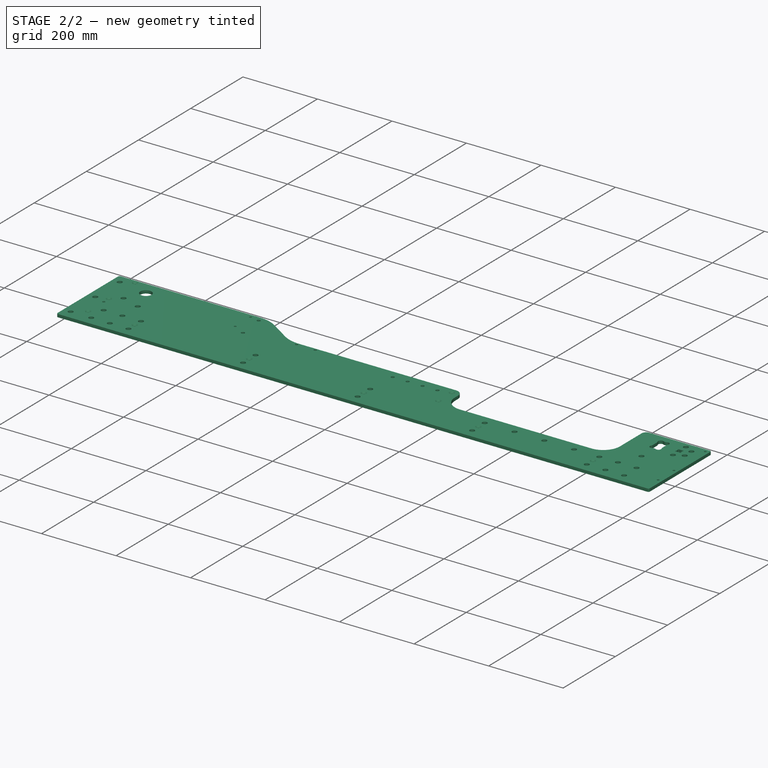
[diagram: stage 2 of 2 — iso view after this stage's code; geometry added in this stage tinted green]
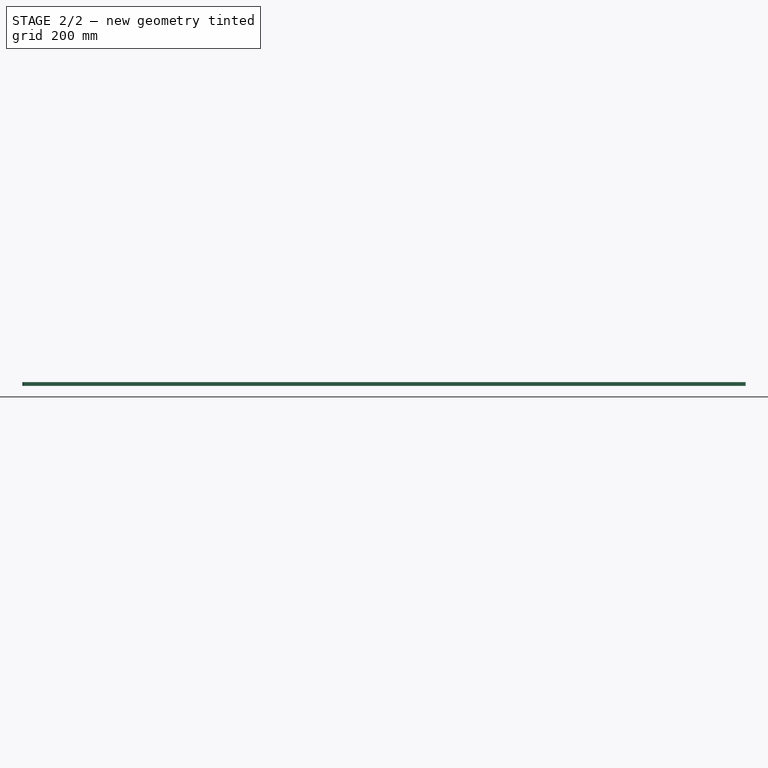
[diagram: stage 2 of 2 — front view after this stage's code; geometry added in this stage tinted green]
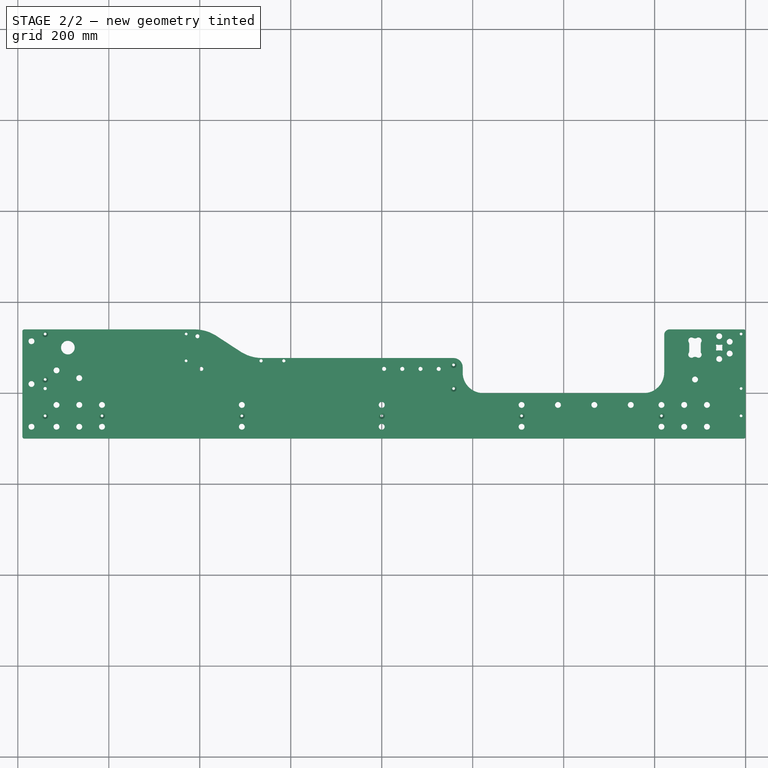
[diagram: stage 2 of 2 — top view after this stage's code; geometry added in this stage tinted green]
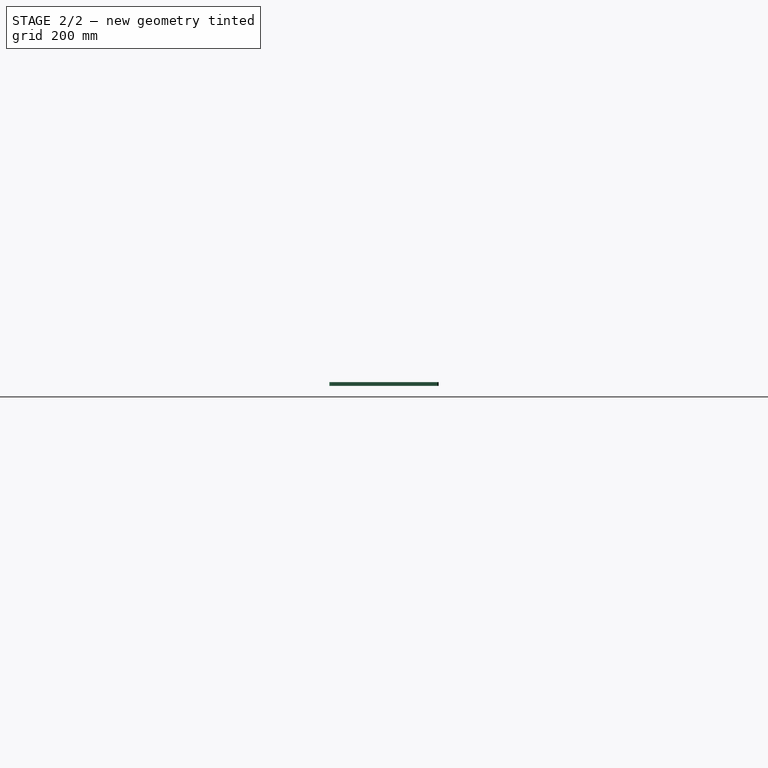
[diagram: stage 2 of 2 — right view after this stage's code; geometry added in this stage tinted green]
FEATURE [PartDesign::Chamfer] Chamfer001  label="M6 Countersinks"
  Angle = 45
  Base = -> Chamfer [Edge99]
  BaseFeature = -> Chamfer
  ChamferType = 0
  FlipDirection = false
  Size = 2.5
  Size2 = 1
  SupportTransform = false
FEATURE [PartDesign::Body] Body
  Group = -> [Sketch,Pad,Chamfer,Chamfer001]
  Origin = -> Origin
  Tip = -> Chamfer001
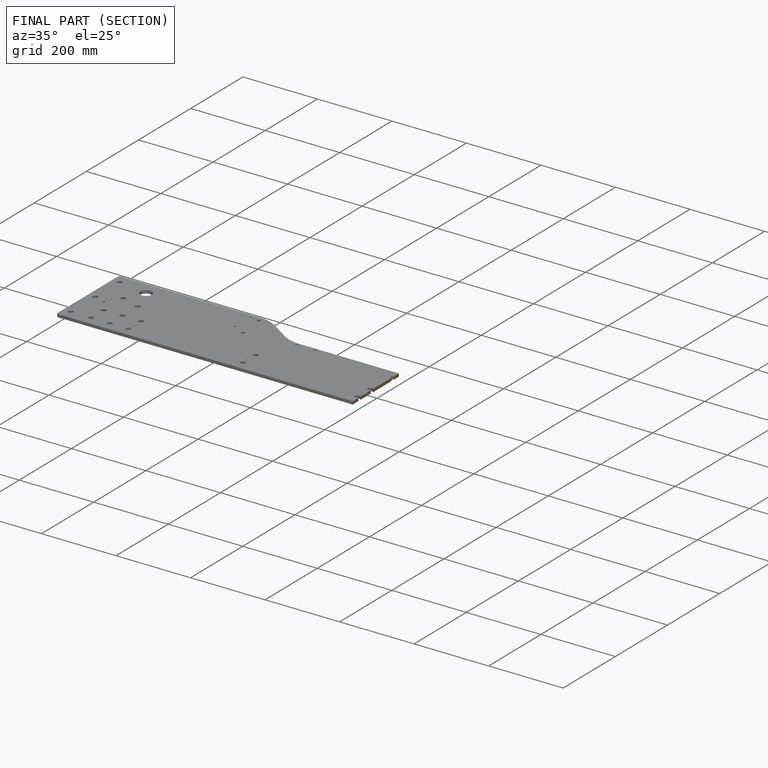
[diagram: finished part — half-section view (interior)]
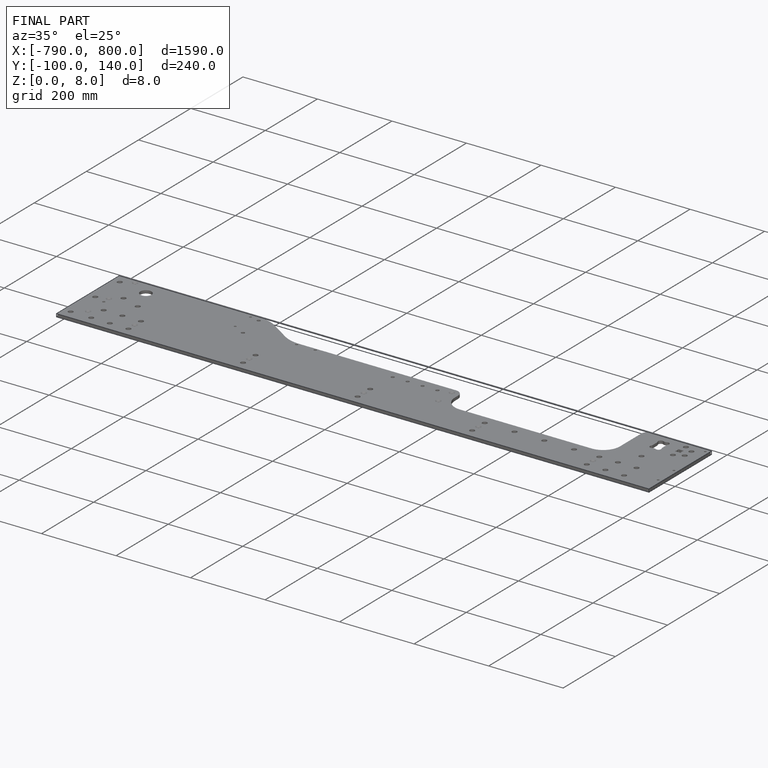
[diagram: finished part — iso view with bounding-box wireframe]
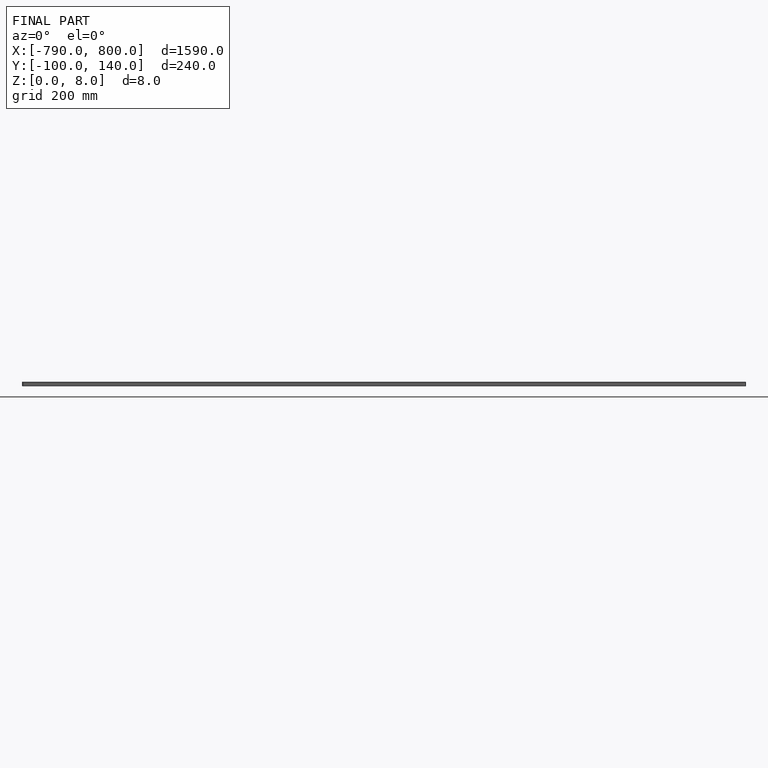
[diagram: finished part — front view with bounding-box wireframe]
